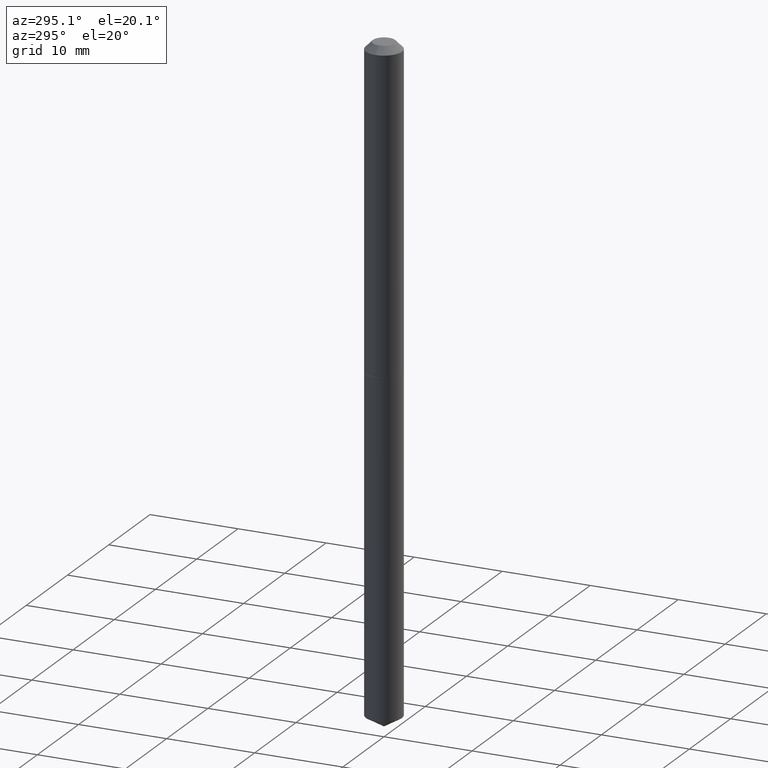
[diagram: clean part render]
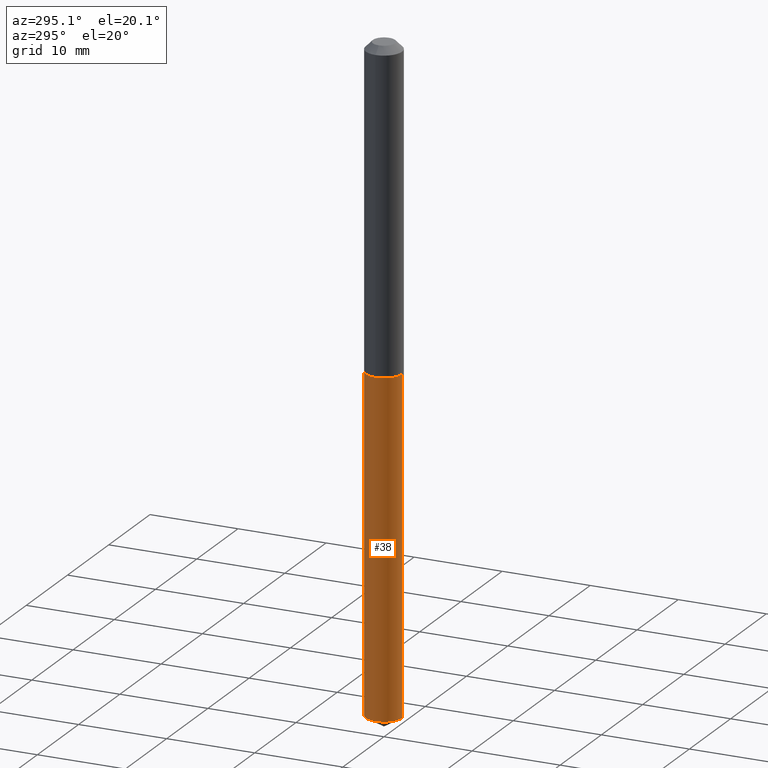
[diagram: same view with one face highlighted and labeled with its STEP entity id]
A machine part, auxiliary view. The second image highlights one B-rep face of the part: STEP entity #38.
In plain terms, the highlighted cylindrical surface (edge-blend (fillet) strip) has radius 2.0498 mm, axis along (-0, 0, 1).
Its self-contained STEP definition (entity closure, byte-faithful):
#38 = ADVANCED_FACE ( 'NONE', ( #240 ), #153, .T. ) ;
#40 = VECTOR ( 'NONE', #353, 39.37007874015748143 ) ;
#45 = VERTEX_POINT ( 'NONE', #248 ) ;
#62 = EDGE_CURVE ( 'NONE', #144, #45, #126, .T. ) ;
#66 = DIRECTION ( 'NONE',  ( -6.982962677686266711E-15, -1.000000000000000000, 6.770379166454184154E-15 ) ) ;
#84 = CARTESIAN_POINT ( 'NONE',  ( 5.734079877584715087E-16, 0.08069999999998982154, -2.904310548044476192 ) ) ;
#108 = CIRCLE ( 'NONE', #167, 0.08069999999999999396 ) ;
#117 = VERTEX_POINT ( 'NONE', #84 ) ;
#126 = LINE ( 'NONE', #191, #40 ) ;
#128 = CARTESIAN_POINT ( 'NONE',  ( 7.102449782531555284E-29, -1.014027600469533393E-14, -2.904310548044475748 ) ) ;
#131 = CARTESIAN_POINT ( 'NONE',  ( -5.635250880892103719E-16, -0.08070000000001011087, -2.904310548044475304 ) ) ;
#132 = CIRCLE ( 'NONE', #207, 0.08069999999999999396 ) ;
#144 = VERTEX_POINT ( 'NONE', #131 ) ;
#152 = CARTESIAN_POINT ( 'NONE',  ( 3.475744814230933928E-29, -4.962442426897761682E-15, -1.421299999999999564 ) ) ;
#153 = CYLINDRICAL_SURFACE ( 'NONE', #287, 0.08069999999999999396 ) ;
#167 = AXIS2_PLACEMENT_3D ( 'NONE', #152, #277, #312 ) ;
#184 = EDGE_CURVE ( 'NONE', #117, #144, #132, .T. ) ;
#191 = CARTESIAN_POINT ( 'NONE',  ( -5.635250880892469553E-16, -0.08070000000000496221, -1.421299999999999342 ) ) ;
#207 = AXIS2_PLACEMENT_3D ( 'NONE', #128, #329, #66 ) ;
#208 = VERTEX_POINT ( 'NONE', #306 ) ;
#229 = CARTESIAN_POINT ( 'NONE',  ( 5.734079877584354184E-16, 0.08069999999999502571, -1.421300000000000008 ) ) ;
#240 = FACE_OUTER_BOUND ( 'NONE', #366, .T. ) ;
#241 = ORIENTED_EDGE ( 'NONE', *, *, #184, .T. ) ;
#243 = EDGE_CURVE ( 'NONE', #117, #208, #292, .T. ) ;
#248 = CARTESIAN_POINT ( 'NONE',  ( -5.635250880892469553E-16, -0.08070000000000496221, -1.421299999999999342 ) ) ;
#252 = VECTOR ( 'NONE', #361, 39.37007874015748143 ) ;
#254 = DIRECTION ( 'NONE',  ( -2.445501802453704047E-29, 3.491434086308526252E-15, 1.000000000000000000 ) ) ;
#277 = DIRECTION ( 'NONE',  ( -2.445501802453704047E-29, 3.491434086308526252E-15, 1.000000000000000000 ) ) ;
#287 = AXIS2_PLACEMENT_3D ( 'NONE', #355, #254, #379 ) ;
#292 = LINE ( 'NONE', #229, #252 ) ;
#306 = CARTESIAN_POINT ( 'NONE',  ( 5.734079877584720018E-16, 0.08069999999999502571, -1.421300000000000008 ) ) ;
#309 = ORIENTED_EDGE ( 'NONE', *, *, #62, .T. ) ;
#312 = DIRECTION ( 'NONE',  ( -6.982962677686266711E-15, -1.000000000000000000, 3.385189583227092077E-15 ) ) ;
#315 = ORIENTED_EDGE ( 'NONE', *, *, #243, .F. ) ;
#329 = DIRECTION ( 'NONE',  ( -2.445501802453704047E-29, 3.491434086308526252E-15, 1.000000000000000000 ) ) ;
#353 = DIRECTION ( 'NONE',  ( -2.445501802453704047E-29, 3.491434086308526252E-15, 1.000000000000000000 ) ) ;
#355 = CARTESIAN_POINT ( 'NONE',  ( 3.475744814230933928E-29, -4.962442426897761682E-15, -1.421299999999999564 ) ) ;
#361 = DIRECTION ( 'NONE',  ( -2.445501802453704047E-29, 3.491434086308526252E-15, 1.000000000000000000 ) ) ;
#366 = EDGE_LOOP ( 'NONE', ( #315, #241, #309, #377 ) ) ;
#377 = ORIENTED_EDGE ( 'NONE', *, *, #385, .F. ) ;
#379 = DIRECTION ( 'NONE',  ( -6.982962677686266711E-15, -1.000000000000000000, 3.385189583227092077E-15 ) ) ;
#385 = EDGE_CURVE ( 'NONE', #208, #45, #108, .T. ) ;